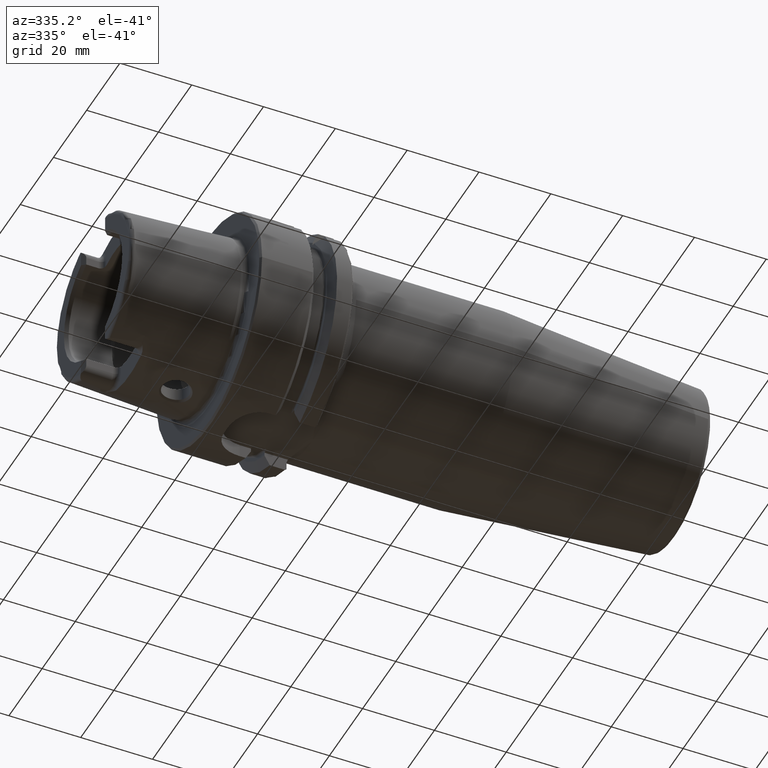
[diagram: clean part render]
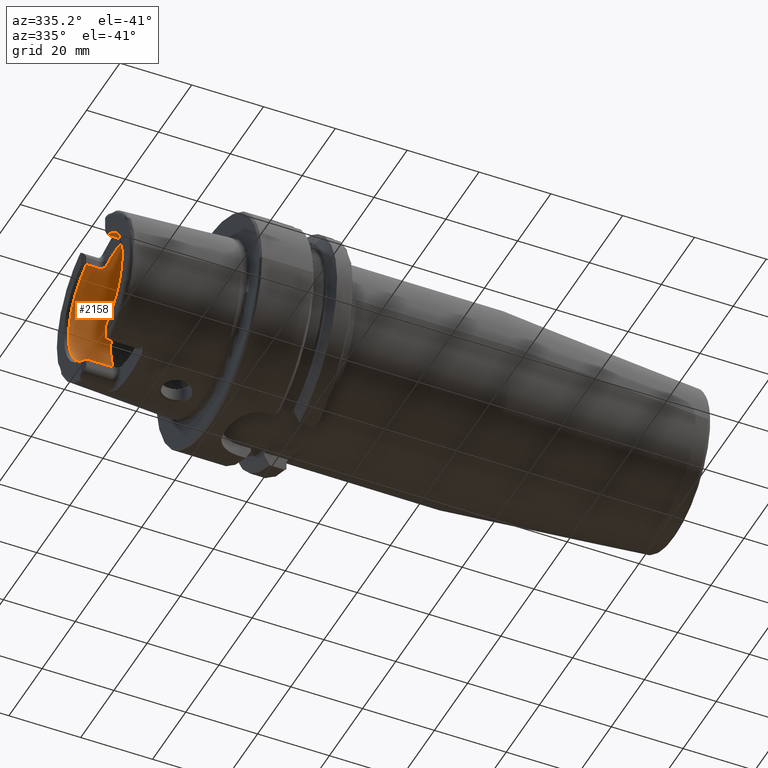
[diagram: same view with one face highlighted and labeled with its STEP entity id]
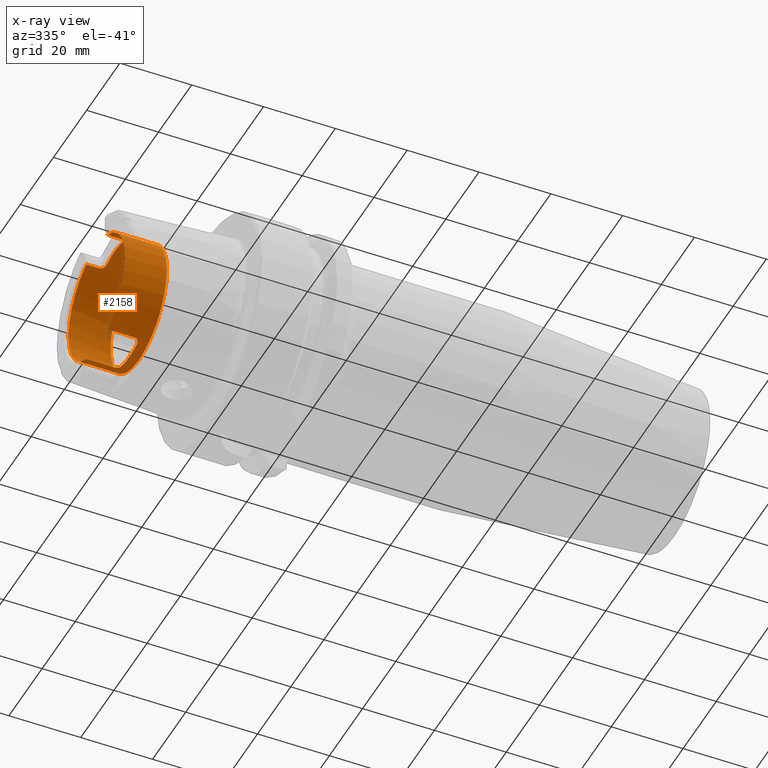
[diagram: x-ray of the same camera — body ghosted, the highlighted face saturated]
A machine part, auxiliary view. The second image highlights one B-rep face of the part: STEP entity #2158.
The next image is the same camera in x-ray: the body ghosted, the highlighted face saturated — about 4% of this face is hidden behind the body in this view.
In plain terms, the highlighted cylindrical surface (bore or boss wall) has radius 17 mm, axis along (-1, 0, 0).
Its self-contained STEP definition (entity closure, byte-faithful):
#95=B_SPLINE_CURVE_WITH_KNOTS('',3,(#4484,#4485,#4486,#4487,#4488,#4489,
#4490,#4491,#4492,#4493),.UNSPECIFIED.,.F.,.F.,(4,2,2,2,4),(0.229569660485746,
0.289239803007022,0.348909945528297,0.405407845050218,0.46190574457214),
 .UNSPECIFIED.);
#96=B_SPLINE_CURVE_WITH_KNOTS('',3,(#4502,#4503,#4504,#4505,#4506,#4507,
#4508,#4509,#4510,#4511),.UNSPECIFIED.,.F.,.F.,(4,2,2,2,4),(0.46190574457214,
0.519239917776744,0.576574090981348,0.635410522815223,0.694246954649097),
 .UNSPECIFIED.);
#97=B_SPLINE_CURVE_WITH_KNOTS('',3,(#4520,#4521,#4522,#4523,#4524,#4525,
#4526,#4527,#4528,#4529),.UNSPECIFIED.,.F.,.F.,(4,2,2,2,4),(0.461905744572139,
0.518403644094061,0.574901543615982,0.634571686137257,0.694241828658533),
 .UNSPECIFIED.);
#98=B_SPLINE_CURVE_WITH_KNOTS('',3,(#4543,#4544,#4545,#4546,#4547,#4548,
#4549,#4550,#4551,#4552),.UNSPECIFIED.,.F.,.F.,(4,2,2,2,4),(0.229569660485747,
0.289239803007022,0.348909945528297,0.405407845050218,0.46190574457214),
 .UNSPECIFIED.);
#221=CYLINDRICAL_SURFACE('',#2413,17.);
#326=FACE_OUTER_BOUND('',#458,.T.);
#458=EDGE_LOOP('',(#1922,#1923,#1924,#1925,#1926,#1927,#1928,#1929,#1930,
#1931,#1932,#1933,#1934,#1935,#1936,#1937,#1938));
#507=LINE('',#3323,#615);
#513=LINE('',#3339,#621);
#519=LINE('',#3394,#627);
#523=LINE('',#3460,#631);
#585=LINE('',#4567,#693);
#615=VECTOR('',#2609,10.);
#621=VECTOR('',#2623,10.);
#627=VECTOR('',#2645,10.);
#631=VECTOR('',#2669,10.);
#693=VECTOR('',#2989,17.);
#796=CIRCLE('',#2401,17.);
#801=CIRCLE('',#2412,17.);
#802=CIRCLE('',#2414,17.);
#803=CIRCLE('',#2415,17.);
#804=CIRCLE('',#2416,17.);
#805=CIRCLE('',#2417,17.);
#806=CIRCLE('',#2418,17.);
#877=VERTEX_POINT('',#3276);
#884=VERTEX_POINT('',#3322);
#887=VERTEX_POINT('',#3329);
#890=VERTEX_POINT('',#3337);
#898=VERTEX_POINT('',#3384);
#901=VERTEX_POINT('',#3392);
#908=VERTEX_POINT('',#3427);
#913=VERTEX_POINT('',#3459);
#1020=VERTEX_POINT('',#4482);
#1022=VERTEX_POINT('',#4501);
#1024=VERTEX_POINT('',#4519);
#1025=VERTEX_POINT('',#4536);
#1027=VERTEX_POINT('',#4563);
#1028=VERTEX_POINT('',#4564);
#1029=VERTEX_POINT('',#4566);
#1116=EDGE_CURVE('',#884,#877,#507,.T.);
#1124=EDGE_CURVE('',#887,#890,#513,.T.);
#1137=EDGE_CURVE('',#898,#901,#519,.T.);
#1151=EDGE_CURVE('',#913,#908,#523,.T.);
#1317=EDGE_CURVE('',#1020,#901,#95,.T.);
#1321=EDGE_CURVE('',#913,#1022,#96,.T.);
#1326=EDGE_CURVE('',#884,#1024,#97,.T.);
#1330=EDGE_CURVE('',#1025,#1024,#796,.T.);
#1334=EDGE_CURVE('',#1025,#890,#98,.T.);
#1338=EDGE_CURVE('',#1020,#1022,#801,.T.);
#1339=EDGE_CURVE('',#1027,#1028,#802,.T.);
#1340=EDGE_CURVE('',#1027,#1029,#585,.T.);
#1341=EDGE_CURVE('',#898,#1029,#803,.T.);
#1342=EDGE_CURVE('',#887,#908,#804,.T.);
#1343=EDGE_CURVE('',#1029,#877,#805,.T.);
#1344=EDGE_CURVE('',#1028,#1027,#806,.T.);
#1922=ORIENTED_EDGE('',*,*,#1339,.F.);
#1923=ORIENTED_EDGE('',*,*,#1340,.T.);
#1924=ORIENTED_EDGE('',*,*,#1341,.F.);
#1925=ORIENTED_EDGE('',*,*,#1137,.T.);
#1926=ORIENTED_EDGE('',*,*,#1317,.F.);
#1927=ORIENTED_EDGE('',*,*,#1338,.T.);
#1928=ORIENTED_EDGE('',*,*,#1321,.F.);
#1929=ORIENTED_EDGE('',*,*,#1151,.T.);
#1930=ORIENTED_EDGE('',*,*,#1342,.F.);
#1931=ORIENTED_EDGE('',*,*,#1124,.T.);
#1932=ORIENTED_EDGE('',*,*,#1334,.F.);
#1933=ORIENTED_EDGE('',*,*,#1330,.T.);
#1934=ORIENTED_EDGE('',*,*,#1326,.F.);
#1935=ORIENTED_EDGE('',*,*,#1116,.T.);
#1936=ORIENTED_EDGE('',*,*,#1343,.F.);
#1937=ORIENTED_EDGE('',*,*,#1340,.F.);
#1938=ORIENTED_EDGE('',*,*,#1344,.F.);
#2158=ADVANCED_FACE('',(#326),#221,.F.);
#2401=AXIS2_PLACEMENT_3D('',#4537,#2959,#2960);
#2412=AXIS2_PLACEMENT_3D('',#4561,#2983,#2984);
#2413=AXIS2_PLACEMENT_3D('',#4562,#2985,#2986);
#2414=AXIS2_PLACEMENT_3D('',#4565,#2987,#2988);
#2415=AXIS2_PLACEMENT_3D('',#4568,#2990,#2991);
#2416=AXIS2_PLACEMENT_3D('',#4569,#2992,#2993);
#2417=AXIS2_PLACEMENT_3D('',#4570,#2994,#2995);
#2418=AXIS2_PLACEMENT_3D('',#4571,#2996,#2997);
#2609=DIRECTION('',(-1.,0.,0.));
#2623=DIRECTION('',(1.,0.,0.));
#2645=DIRECTION('',(1.,0.,0.));
#2669=DIRECTION('',(-1.,0.,0.));
#2959=DIRECTION('center_axis',(-1.,0.,0.));
#2960=DIRECTION('ref_axis',(0.,1.,0.));
#2983=DIRECTION('center_axis',(-1.,0.,0.));
#2984=DIRECTION('ref_axis',(0.,1.,0.));
#2985=DIRECTION('center_axis',(-1.,0.,0.));
#2986=DIRECTION('ref_axis',(0.,1.,0.));
#2987=DIRECTION('center_axis',(-1.,0.,0.));
#2988=DIRECTION('ref_axis',(0.,0.,1.));
#2989=DIRECTION('',(-1.,0.,0.));
#2990=DIRECTION('center_axis',(1.,0.,0.));
#2991=DIRECTION('ref_axis',(0.,-1.,0.));
#2992=DIRECTION('center_axis',(1.,0.,0.));
#2993=DIRECTION('ref_axis',(0.,-1.,0.));
#2994=DIRECTION('center_axis',(1.,0.,0.));
#2995=DIRECTION('ref_axis',(0.,-1.,0.));
#2996=DIRECTION('center_axis',(-1.,0.,0.));
#2997=DIRECTION('ref_axis',(0.,0.,1.));
#3276=CARTESIAN_POINT('',(-31.,-6.27,-15.8014904360317));
#3322=CARTESIAN_POINT('',(-23.5,-6.27,-15.8014904360317));
#3323=CARTESIAN_POINT('',(-25.6423502691896,-6.27,-15.8014904360317));
#3329=CARTESIAN_POINT('',(-31.,6.27,-15.8014904360317));
#3337=CARTESIAN_POINT('',(-23.5,6.27,-15.8014904360317));
#3339=CARTESIAN_POINT('',(-25.6423502691896,6.27,-15.8014904360317));
#3384=CARTESIAN_POINT('',(-31.,-6.27,15.8014904360317));
#3392=CARTESIAN_POINT('',(-27.5,-6.27,15.8014904360317));
#3394=CARTESIAN_POINT('',(-25.6423502691896,-6.27,15.8014904360317));
#3427=CARTESIAN_POINT('',(-31.,6.27,15.8014904360317));
#3459=CARTESIAN_POINT('',(-27.5,6.27,15.8014904360317));
#3460=CARTESIAN_POINT('',(-25.6423502691896,6.27,15.8014904360317));
#4482=CARTESIAN_POINT('',(-26.,-4.77,16.3170800083839));
#4484=CARTESIAN_POINT('Ctrl Pts',(-26.,-4.77,16.3170800083839));
#4485=CARTESIAN_POINT('Ctrl Pts',(-26.,-4.96091029208457,16.2612708750845));
#4486=CARTESIAN_POINT('Ctrl Pts',(-26.0385404635846,-5.16378617408596,16.1979610859593));
#4487=CARTESIAN_POINT('Ctrl Pts',(-26.1950909803916,-5.53690543536203,16.0742436586733));
#4488=CARTESIAN_POINT('Ctrl Pts',(-26.3130861154278,-5.70721093092864,16.01400454532));
#4489=CARTESIAN_POINT('Ctrl Pts',(-26.5811791540138,-5.96960590306613,15.9179857910505));
#4490=CARTESIAN_POINT('Ctrl Pts',(-26.7467155703026,-6.082078486584,15.8749745356799));
#4491=CARTESIAN_POINT('Ctrl Pts',(-27.1119229195206,-6.23232125085234,15.8165946761251));
#4492=CARTESIAN_POINT('Ctrl Pts',(-27.3116736682603,-6.27,15.8014904360317));
#4493=CARTESIAN_POINT('Ctrl Pts',(-27.5,-6.27,15.8014904360317));
#4501=CARTESIAN_POINT('',(-26.,4.77,16.3170800083839));
#4502=CARTESIAN_POINT('Ctrl Pts',(-27.5,6.27,15.8014904360317));
#4503=CARTESIAN_POINT('Ctrl Pts',(-27.308886089318,6.27,15.8014904360317));
#4504=CARTESIAN_POINT('Ctrl Pts',(-27.1064099842243,6.23121026569193,15.8170435837256));
#4505=CARTESIAN_POINT('Ctrl Pts',(-26.7371019784685,6.07691823919465,15.8769617281184));
#4506=CARTESIAN_POINT('Ctrl Pts',(-26.5701870418163,5.96150738537594,15.9210500039306));
#4507=CARTESIAN_POINT('Ctrl Pts',(-26.3050641818979,5.69638452545756,16.017853695422));
#4508=CARTESIAN_POINT('Ctrl Pts',(-26.1900212186221,5.52750941197086,16.0774506535614));
#4509=CARTESIAN_POINT('Ctrl Pts',(-26.0374824299787,5.15846789211413,16.1996292802954));
#4510=CARTESIAN_POINT('Ctrl Pts',(-26.,4.95824289522375,16.2620506397863));
#4511=CARTESIAN_POINT('Ctrl Pts',(-26.,4.77,16.3170800083839));
#4519=CARTESIAN_POINT('',(-22.,-4.77,-16.3170800083839));
#4520=CARTESIAN_POINT('Ctrl Pts',(-23.5,-6.27,-15.8014904360317));
#4521=CARTESIAN_POINT('Ctrl Pts',(-23.3116736682603,-6.27,-15.8014904360317));
#4522=CARTESIAN_POINT('Ctrl Pts',(-23.1119229195206,-6.23232125085234,-15.8165946761251));
#4523=CARTESIAN_POINT('Ctrl Pts',(-22.7467155703026,-6.082078486584,-15.8749745356799));
#4524=CARTESIAN_POINT('Ctrl Pts',(-22.5811791540138,-5.96960590306613,-15.9179857910505));
#4525=CARTESIAN_POINT('Ctrl Pts',(-22.3130861154278,-5.70721093092864,-16.01400454532));
#4526=CARTESIAN_POINT('Ctrl Pts',(-22.1950909803916,-5.53690543536204,-16.0742436586733));
#4527=CARTESIAN_POINT('Ctrl Pts',(-22.0385404635846,-5.16378617408596,-16.1979610859593));
#4528=CARTESIAN_POINT('Ctrl Pts',(-22.,-4.96091029208457,-16.2612708750845));
#4529=CARTESIAN_POINT('Ctrl Pts',(-22.,-4.77,-16.3170800083839));
#4536=CARTESIAN_POINT('',(-22.,4.77,-16.3170800083839));
#4537=CARTESIAN_POINT('Origin',(-22.,0.,0.));
#4543=CARTESIAN_POINT('Ctrl Pts',(-22.,4.77,-16.3170800083839));
#4544=CARTESIAN_POINT('Ctrl Pts',(-22.,4.96091029208457,-16.2612708750845));
#4545=CARTESIAN_POINT('Ctrl Pts',(-22.0385404635846,5.16378617408596,-16.1979610859593));
#4546=CARTESIAN_POINT('Ctrl Pts',(-22.1950909803916,5.53690543536204,-16.0742436586733));
#4547=CARTESIAN_POINT('Ctrl Pts',(-22.3130861154278,5.70721093092864,-16.01400454532));
#4548=CARTESIAN_POINT('Ctrl Pts',(-22.5811791540138,5.96960590306613,-15.9179857910505));
#4549=CARTESIAN_POINT('Ctrl Pts',(-22.7467155703026,6.082078486584,-15.8749745356799));
#4550=CARTESIAN_POINT('Ctrl Pts',(-23.1119229195206,6.23232125085234,-15.8165946761251));
#4551=CARTESIAN_POINT('Ctrl Pts',(-23.3116736682603,6.27,-15.8014904360317));
#4552=CARTESIAN_POINT('Ctrl Pts',(-23.5,6.27,-15.8014904360317));
#4561=CARTESIAN_POINT('Origin',(-26.,0.,0.));
#4562=CARTESIAN_POINT('Origin',(-25.6423502691896,0.,0.));
#4563=CARTESIAN_POINT('',(-19.2847005383793,-17.,2.0818995585505E-15));
#4564=CARTESIAN_POINT('',(-19.2847005383793,-2.0818995585505E-15,-17.));
#4565=CARTESIAN_POINT('Origin',(-19.2847005383793,0.,0.));
#4566=CARTESIAN_POINT('',(-31.,-17.,2.0818995585505E-15));
#4567=CARTESIAN_POINT('',(-25.6423502691896,-17.,2.0818995585505E-15));
#4568=CARTESIAN_POINT('Origin',(-31.,0.,0.));
#4569=CARTESIAN_POINT('Origin',(-31.,0.,0.));
#4570=CARTESIAN_POINT('Origin',(-31.,0.,0.));
#4571=CARTESIAN_POINT('Origin',(-19.2847005383793,0.,0.));